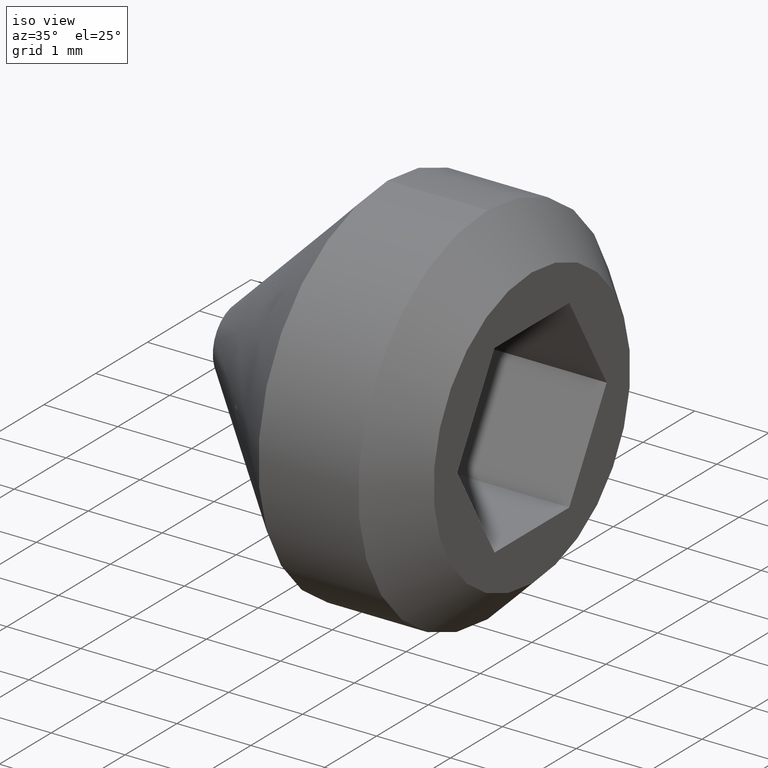
[diagram: clean part render]
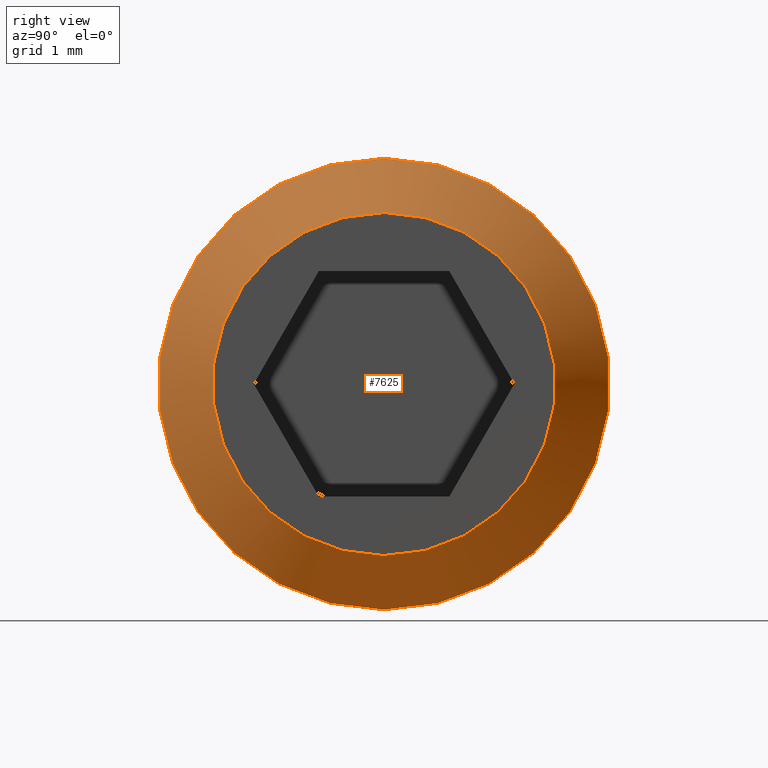
[diagram: tour spotlight — one face highlighted and labeled with its STEP entity id]
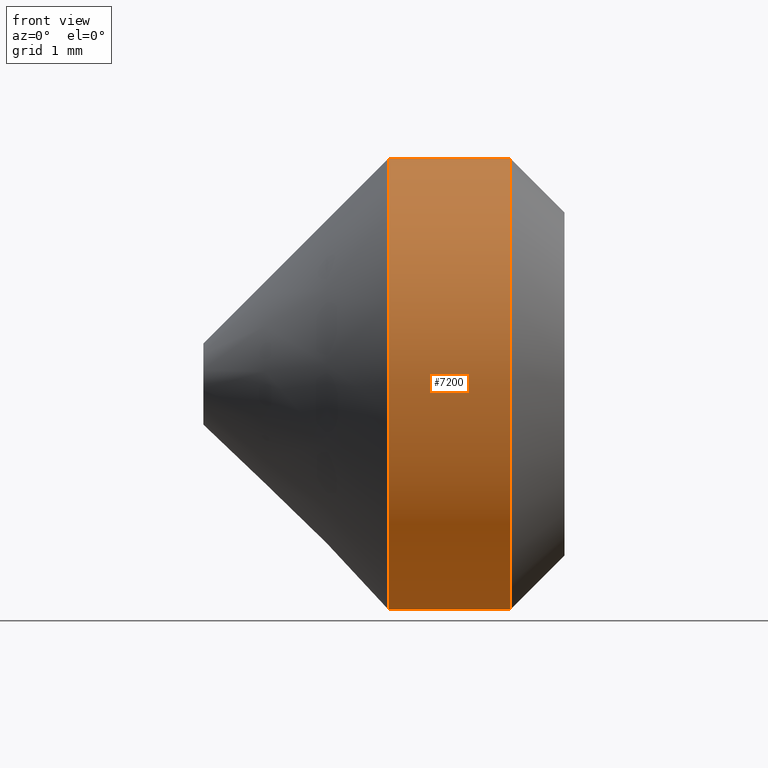
[diagram: tour spotlight — one face highlighted and labeled with its STEP entity id]
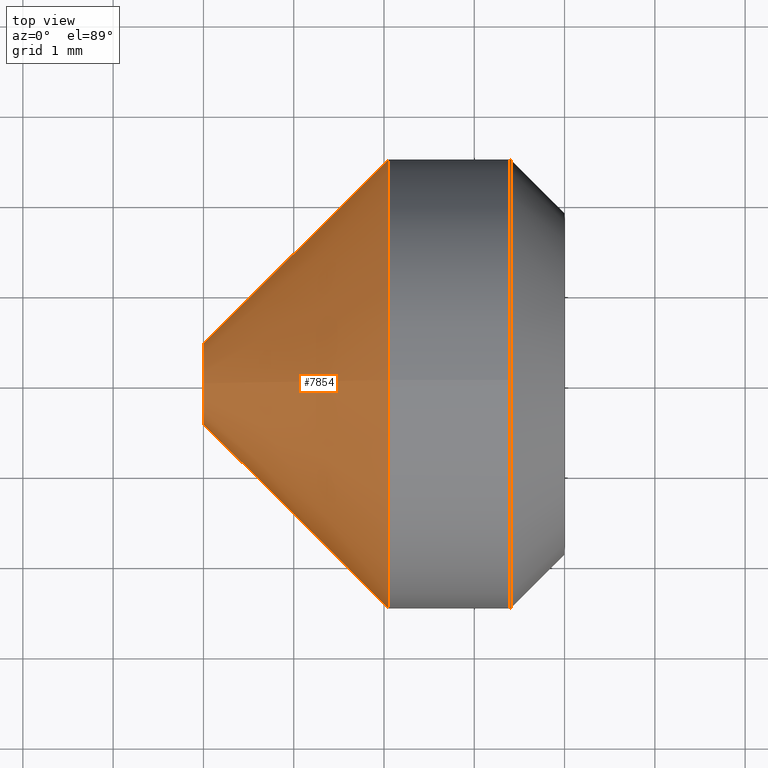
[diagram: tour spotlight — one face highlighted and labeled with its STEP entity id]
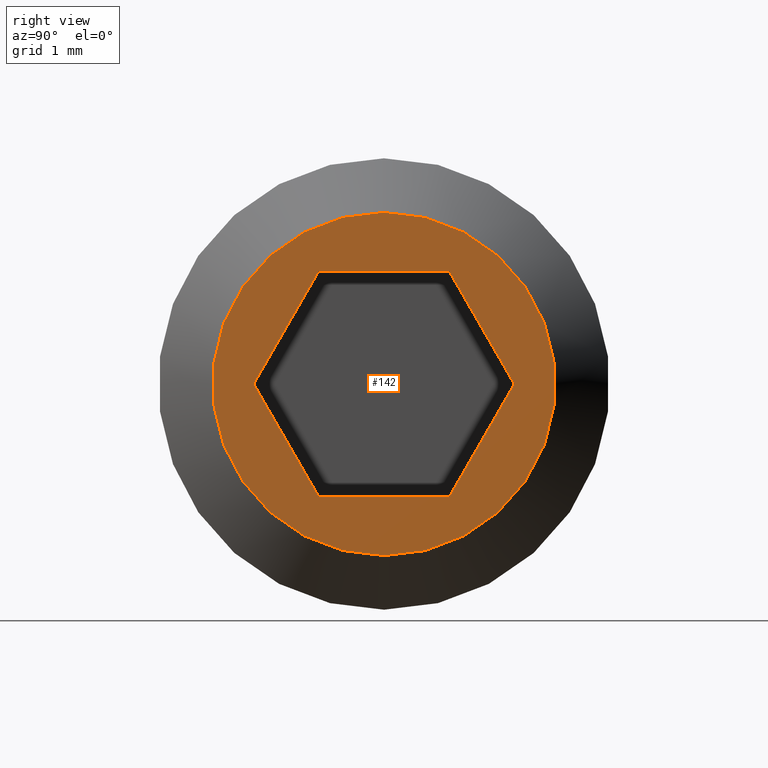
[diagram: tour spotlight — one face highlighted and labeled with its STEP entity id]
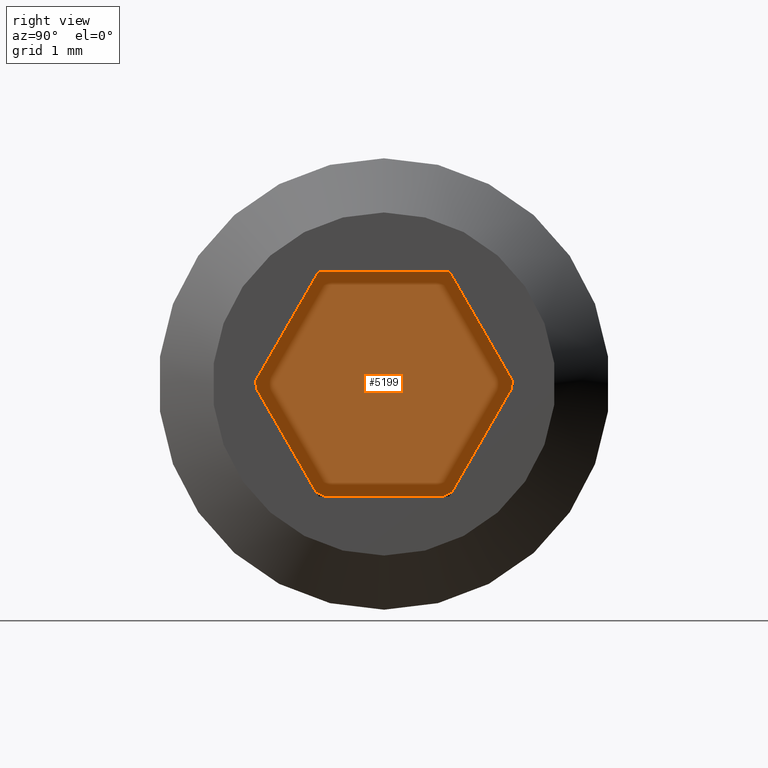
[diagram: tour spotlight — one face highlighted and labeled with its STEP entity id]
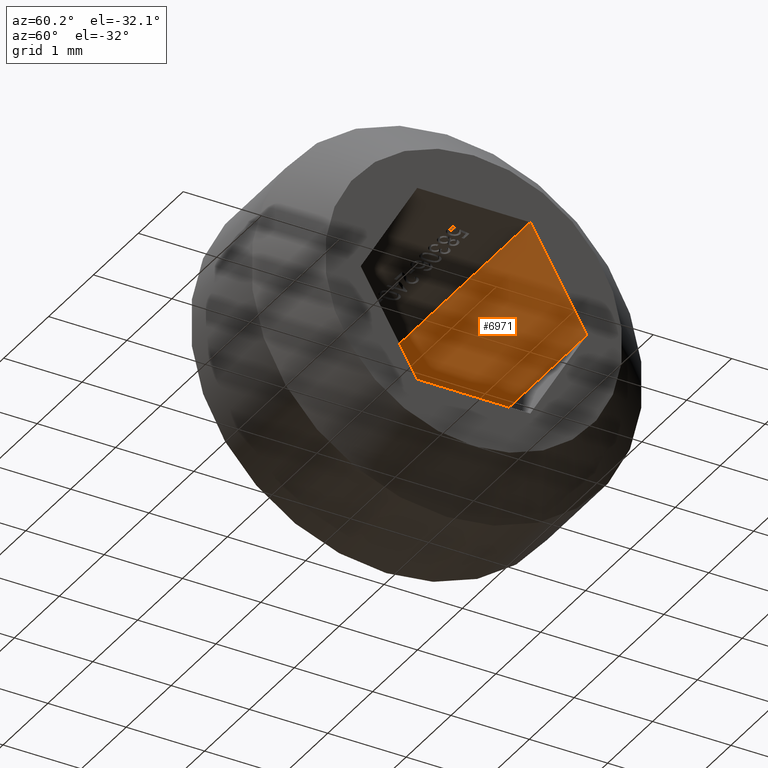
[diagram: tour spotlight — one face highlighted and labeled with its STEP entity id]
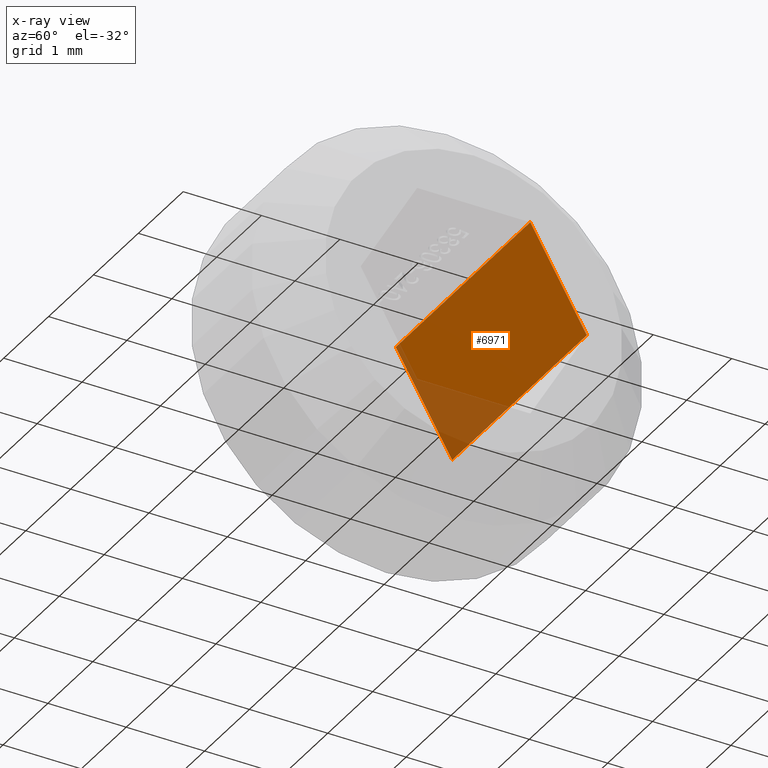
[diagram: x-ray of the same camera — body ghosted, this tour face saturated]
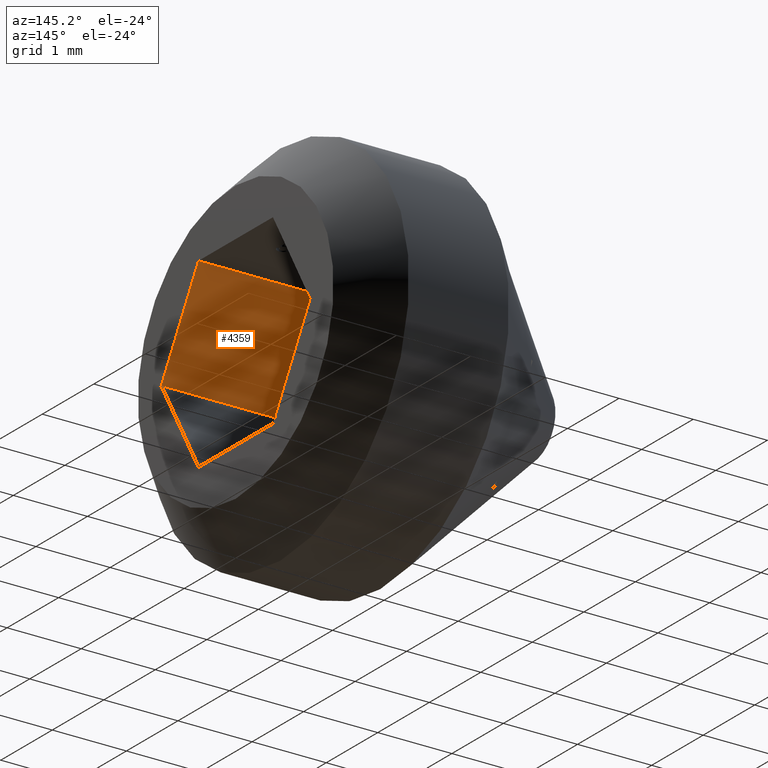
[diagram: tour spotlight — one face highlighted and labeled with its STEP entity id]
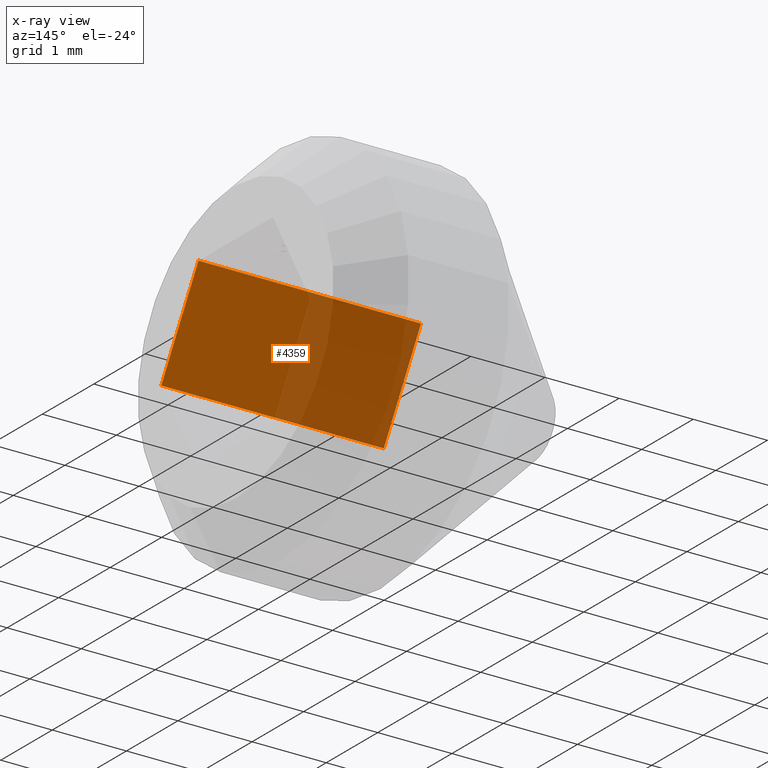
[diagram: x-ray of the same camera — body ghosted, this tour face saturated]
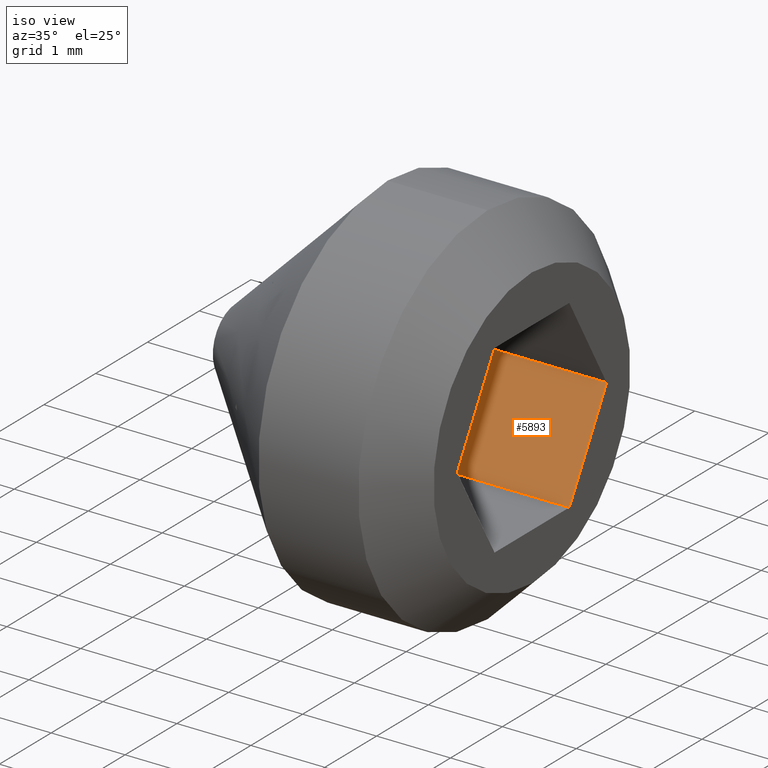
[diagram: tour spotlight — one face highlighted and labeled with its STEP entity id]
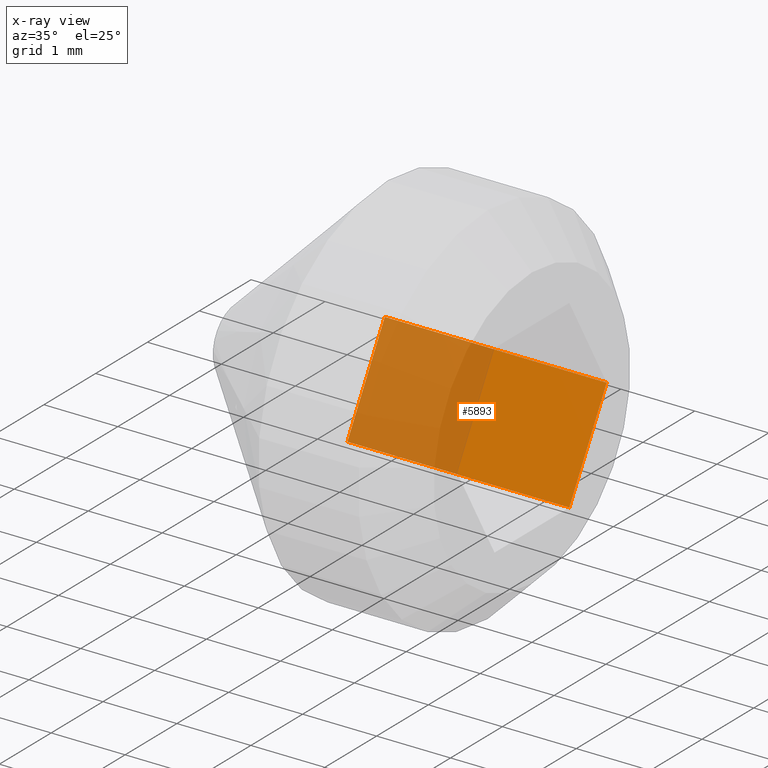
[diagram: x-ray of the same camera — body ghosted, this tour face saturated]
A machine part: a face-by-face anatomy tour. The part has 164 B-rep faces; the first image is the clean iso view, then the 8 largest visible faces are spotlighted one at a time (largest first), each with its STEP entity span.

Face 1 — right view, entity #7625. In plain terms, the highlighted conical surface has half-angle 45 deg.
Definition (entity closure, byte-faithful):
#206 = AXIS2_PLACEMENT_3D ( 'NONE', #4675, #10399, #10545 ) ;
#620 = CARTESIAN_POINT ( 'NONE',  ( 4.000000000000000000, 0.0000000000000000000, 0.0000000000000000000 ) ) ;
#702 = AXIS2_PLACEMENT_3D ( 'NONE', #620, #6449, #10551 ) ;
#823 = VERTEX_POINT ( 'NONE', #7634 ) ;
#1217 = VERTEX_POINT ( 'NONE', #3456 ) ;
#1231 = DIRECTION ( 'NONE',  ( -1.000000000000000000, 0.0000000000000000000, 0.0000000000000000000 ) ) ;
#1896 = CIRCLE ( 'NONE', #9694, 2.500000000000000000 ) ;
#2937 = CARTESIAN_POINT ( 'NONE',  ( 3.399999999999998100, 0.0000000000000000000, 0.0000000000000000000 ) ) ;
#3456 = CARTESIAN_POINT ( 'NONE',  ( 3.399999999999998100, 0.0000000000000000000, -2.500000000000000000 ) ) ;
#3458 = FACE_OUTER_BOUND ( 'NONE', #3684, .T. ) ;
#3684 = EDGE_LOOP ( 'NONE', ( #8734 ) ) ;
#3900 = EDGE_LOOP ( 'NONE', ( #5234 ) ) ;
#4675 = CARTESIAN_POINT ( 'NONE',  ( 4.000000000000000000, 0.0000000000000000000, 0.0000000000000000000 ) ) ;
#5234 = ORIENTED_EDGE ( 'NONE', *, *, #9887, .F. ) ;
#5836 = EDGE_CURVE ( 'NONE', #1217, #1217, #1896, .T. ) ;
#6449 = DIRECTION ( 'NONE',  ( -1.000000000000000000, 0.0000000000000000000, 0.0000000000000000000 ) ) ;
#6975 = CONICAL_SURFACE ( 'NONE', #702, 1.900000000000000100, 0.7853981633974465000 ) ;
#7625 = ADVANCED_FACE ( 'NONE', ( #3458, #9456 ), #6975, .T. ) ;
#7634 = CARTESIAN_POINT ( 'NONE',  ( 4.000000000000000000, 0.0000000000000000000, -1.900000000000000100 ) ) ;
#7845 = DIRECTION ( 'NONE',  ( 0.0000000000000000000, 0.0000000000000000000, -1.000000000000000000 ) ) ;
#8734 = ORIENTED_EDGE ( 'NONE', *, *, #5836, .F. ) ;
#9291 = CIRCLE ( 'NONE', #206, 1.900000000000000100 ) ;
#9456 = FACE_BOUND ( 'NONE', #3900, .T. ) ;
#9694 = AXIS2_PLACEMENT_3D ( 'NONE', #2937, #1231, #7845 ) ;
#9887 = EDGE_CURVE ( 'NONE', #823, #823, #9291, .T. ) ;
#10399 = DIRECTION ( 'NONE',  ( 1.000000000000000000, 0.0000000000000000000, 0.0000000000000000000 ) ) ;
#10545 = DIRECTION ( 'NONE',  ( 0.0000000000000000000, 0.0000000000000000000, -1.000000000000000000 ) ) ;
#10551 = DIRECTION ( 'NONE',  ( 0.0000000000000000000, 0.0000000000000000000, 1.000000000000000000 ) ) ;

Face 2 — front view, entity #7200. In plain terms, the highlighted cylindrical surface (bore or boss wall) has radius 2.5 mm, axis along (-1, -0, -0).
Definition (entity closure, byte-faithful):
#323 = CYLINDRICAL_SURFACE ( 'NONE', #2320, 2.500000000000000000 ) ;
#458 = FACE_OUTER_BOUND ( 'NONE', #8308, .T. ) ;
#549 = CARTESIAN_POINT ( 'NONE',  ( 2.049999999999976300, 0.0000000000000000000, 0.0000000000000000000 ) ) ;
#1217 = VERTEX_POINT ( 'NONE', #3456 ) ;
#1231 = DIRECTION ( 'NONE',  ( -1.000000000000000000, 0.0000000000000000000, 0.0000000000000000000 ) ) ;
#1896 = CIRCLE ( 'NONE', #9694, 2.500000000000000000 ) ;
#1936 = ORIENTED_EDGE ( 'NONE', *, *, #5836, .T. ) ;
#2320 = AXIS2_PLACEMENT_3D ( 'NONE', #2812, #8637, #4689 ) ;
#2642 = VERTEX_POINT ( 'NONE', #10100 ) ;
#2812 = CARTESIAN_POINT ( 'NONE',  ( 4.000000000000000000, 0.0000000000000000000, 0.0000000000000000000 ) ) ;
#2937 = CARTESIAN_POINT ( 'NONE',  ( 3.399999999999998100, 0.0000000000000000000, 0.0000000000000000000 ) ) ;
#3456 = CARTESIAN_POINT ( 'NONE',  ( 3.399999999999998100, 0.0000000000000000000, -2.500000000000000000 ) ) ;
#4689 = DIRECTION ( 'NONE',  ( 0.0000000000000000000, 0.0000000000000000000, 1.000000000000000000 ) ) ;
#5354 = EDGE_LOOP ( 'NONE', ( #1936 ) ) ;
#5421 = FACE_OUTER_BOUND ( 'NONE', #5354, .T. ) ;
#5836 = EDGE_CURVE ( 'NONE', #1217, #1217, #1896, .T. ) ;
#6389 = DIRECTION ( 'NONE',  ( 0.0000000000000000000, 0.0000000000000000000, 1.000000000000000000 ) ) ;
#6763 = AXIS2_PLACEMENT_3D ( 'NONE', #549, #10591, #6389 ) ;
#7200 = ADVANCED_FACE ( 'NONE', ( #5421, #458 ), #323, .T. ) ;
#7845 = DIRECTION ( 'NONE',  ( 0.0000000000000000000, 0.0000000000000000000, -1.000000000000000000 ) ) ;
#8308 = EDGE_LOOP ( 'NONE', ( #8980 ) ) ;
#8637 = DIRECTION ( 'NONE',  ( -1.000000000000000000, -0.0000000000000000000, -0.0000000000000000000 ) ) ;
#8980 = ORIENTED_EDGE ( 'NONE', *, *, #9596, .F. ) ;
#9596 = EDGE_CURVE ( 'NONE', #2642, #2642, #10195, .T. ) ;
#9694 = AXIS2_PLACEMENT_3D ( 'NONE', #2937, #1231, #7845 ) ;
#10100 = CARTESIAN_POINT ( 'NONE',  ( 2.049999999999976300, 0.0000000000000000000, 2.499999999999999600 ) ) ;
#10195 = CIRCLE ( 'NONE', #6763, 2.499999999999999600 ) ;
#10591 = DIRECTION ( 'NONE',  ( -1.000000000000000000, -0.0000000000000000000, -0.0000000000000000000 ) ) ;

Face 3 — top view, entity #7854. In plain terms, the highlighted conical surface has half-angle 45 deg.
Definition (entity closure, byte-faithful):
#6 = CARTESIAN_POINT ( 'NONE',  ( 4.347496136973103900E-016, 0.0000000000000000000, 0.0000000000000000000 ) ) ;
#121 = CARTESIAN_POINT ( 'NONE',  ( 4.347496136973103900E-016, 0.0000000000000000000, 0.4500000000000000100 ) ) ;
#195 = CARTESIAN_POINT ( 'NONE',  ( 4.347496136973103900E-016, 0.0000000000000000000, 0.0000000000000000000 ) ) ;
#327 = EDGE_LOOP ( 'NONE', ( #8464 ) ) ;
#549 = CARTESIAN_POINT ( 'NONE',  ( 2.049999999999976300, 0.0000000000000000000, 0.0000000000000000000 ) ) ;
#563 = VERTEX_POINT ( 'NONE', #121 ) ;
#1702 = ORIENTED_EDGE ( 'NONE', *, *, #9596, .T. ) ;
#2153 = CIRCLE ( 'NONE', #2938, 0.4500000000000000100 ) ;
#2642 = VERTEX_POINT ( 'NONE', #10100 ) ;
#2938 = AXIS2_PLACEMENT_3D ( 'NONE', #195, #4368, #5188 ) ;
#3706 = FACE_BOUND ( 'NONE', #327, .T. ) ;
#4368 = DIRECTION ( 'NONE',  ( -1.000000000000000000, -0.0000000000000000000, -0.0000000000000000000 ) ) ;
#4374 = FACE_OUTER_BOUND ( 'NONE', #6883, .T. ) ;
#5109 = DIRECTION ( 'NONE',  ( 1.000000000000000000, 0.0000000000000000000, 0.0000000000000000000 ) ) ;
#5188 = DIRECTION ( 'NONE',  ( 0.0000000000000000000, 0.0000000000000000000, 1.000000000000000000 ) ) ;
#6389 = DIRECTION ( 'NONE',  ( 0.0000000000000000000, 0.0000000000000000000, 1.000000000000000000 ) ) ;
#6678 = DIRECTION ( 'NONE',  ( 0.0000000000000000000, 0.0000000000000000000, -1.000000000000000000 ) ) ;
#6763 = AXIS2_PLACEMENT_3D ( 'NONE', #549, #10591, #6389 ) ;
#6883 = EDGE_LOOP ( 'NONE', ( #1702 ) ) ;
#7854 = ADVANCED_FACE ( 'NONE', ( #4374, #3706 ), #10610, .T. ) ;
#7963 = EDGE_CURVE ( 'NONE', #563, #563, #2153, .T. ) ;
#8464 = ORIENTED_EDGE ( 'NONE', *, *, #7963, .F. ) ;
#9596 = EDGE_CURVE ( 'NONE', #2642, #2642, #10195, .T. ) ;
#10100 = CARTESIAN_POINT ( 'NONE',  ( 2.049999999999976300, 0.0000000000000000000, 2.499999999999999600 ) ) ;
#10195 = CIRCLE ( 'NONE', #6763, 2.499999999999999600 ) ;
#10591 = DIRECTION ( 'NONE',  ( -1.000000000000000000, -0.0000000000000000000, -0.0000000000000000000 ) ) ;
#10610 = CONICAL_SURFACE ( 'NONE', #10739, 0.4500000000000000100, 0.7853981633974541600 ) ;
#10739 = AXIS2_PLACEMENT_3D ( 'NONE', #6, #5109, #6678 ) ;

Face 4 — right view, entity #142. In plain terms, the highlighted planar face has unit normal (1, 0, 0).
Definition (entity closure, byte-faithful):
#142 = ADVANCED_FACE ( 'NONE', ( #3614, #8690 ), #3053, .T. ) ;
#206 = AXIS2_PLACEMENT_3D ( 'NONE', #4675, #10399, #10545 ) ;
#736 = LINE ( 'NONE', #1502, #9978 ) ;
#754 = VECTOR ( 'NONE', #9405, 1000.000000000000000 ) ;
#788 = ORIENTED_EDGE ( 'NONE', *, *, #1565, .F. ) ;
#801 = CARTESIAN_POINT ( 'NONE',  ( 4.000000000000000000, -0.7216878364870328300, -1.249999999999999800 ) ) ;
#802 = AXIS2_PLACEMENT_3D ( 'NONE', #9744, #5622, #8873 ) ;
#823 = VERTEX_POINT ( 'NONE', #7634 ) ;
#971 = VECTOR ( 'NONE', #3240, 1000.000000000000000 ) ;
#1180 = VERTEX_POINT ( 'NONE', #801 ) ;
#1502 = CARTESIAN_POINT ( 'NONE',  ( 4.000000000000000000, 1.443375672974064500, -2.347414423708810500E-016 ) ) ;
#1565 = EDGE_CURVE ( 'NONE', #10780, #6747, #4024, .T. ) ;
#1692 = CARTESIAN_POINT ( 'NONE',  ( 4.000000000000000000, 1.443375672974064500, -2.347414423708810500E-016 ) ) ;
#2081 = EDGE_CURVE ( 'NONE', #6747, #10409, #5977, .T. ) ;
#2296 = LINE ( 'NONE', #7769, #8393 ) ;
#2335 = DIRECTION ( 'NONE',  ( 0.0000000000000000000, 1.000000000000000000, 0.0000000000000000000 ) ) ;
#2774 = CARTESIAN_POINT ( 'NONE',  ( 4.000000000000000000, -0.7216878364870322700, 1.249999999999999800 ) ) ;
#2953 = ORIENTED_EDGE ( 'NONE', *, *, #5287, .F. ) ;
#2996 = ORIENTED_EDGE ( 'NONE', *, *, #7149, .F. ) ;
#3053 = PLANE ( 'NONE',  #802 ) ;
#3240 = DIRECTION ( 'NONE',  ( 0.0000000000000000000, 0.4999999999999995600, -0.8660254037844389300 ) ) ;
#3614 = FACE_BOUND ( 'NONE', #9029, .T. ) ;
#3948 = EDGE_CURVE ( 'NONE', #6047, #10780, #736, .T. ) ;
#4024 = LINE ( 'NONE', #4975, #6366 ) ;
#4381 = CARTESIAN_POINT ( 'NONE',  ( 4.000000000000000000, -1.443375672974064300, 4.336808689942017700E-016 ) ) ;
#4399 = EDGE_LOOP ( 'NONE', ( #7426 ) ) ;
#4675 = CARTESIAN_POINT ( 'NONE',  ( 4.000000000000000000, 0.0000000000000000000, 0.0000000000000000000 ) ) ;
#4928 = DIRECTION ( 'NONE',  ( 0.0000000000000000000, -0.4999999999999997800, 0.8660254037844387100 ) ) ;
#4975 = CARTESIAN_POINT ( 'NONE',  ( 4.000000000000000000, 0.7216878364870323900, 1.250000000000000200 ) ) ;
#5187 = EDGE_CURVE ( 'NONE', #1180, #9100, #7492, .T. ) ;
#5287 = EDGE_CURVE ( 'NONE', #10409, #1180, #5310, .T. ) ;
#5310 = LINE ( 'NONE', #8884, #971 ) ;
#5622 = DIRECTION ( 'NONE',  ( 1.000000000000000000, 0.0000000000000000000, 0.0000000000000000000 ) ) ;
#5936 = CARTESIAN_POINT ( 'NONE',  ( 4.000000000000000000, 0.7216878364870323900, 1.250000000000000200 ) ) ;
#5977 = LINE ( 'NONE', #2774, #754 ) ;
#6047 = VERTEX_POINT ( 'NONE', #1692 ) ;
#6313 = ORIENTED_EDGE ( 'NONE', *, *, #5187, .F. ) ;
#6366 = VECTOR ( 'NONE', #9139, 1000.000000000000000 ) ;
#6695 = ORIENTED_EDGE ( 'NONE', *, *, #2081, .F. ) ;
#6747 = VERTEX_POINT ( 'NONE', #10288 ) ;
#7149 = EDGE_CURVE ( 'NONE', #9100, #6047, #2296, .T. ) ;
#7426 = ORIENTED_EDGE ( 'NONE', *, *, #9887, .T. ) ;
#7492 = LINE ( 'NONE', #9756, #8937 ) ;
#7634 = CARTESIAN_POINT ( 'NONE',  ( 4.000000000000000000, 0.0000000000000000000, -1.900000000000000100 ) ) ;
#7769 = CARTESIAN_POINT ( 'NONE',  ( 4.000000000000000000, 0.7216878364870323900, -1.249999999999999800 ) ) ;
#8393 = VECTOR ( 'NONE', #9442, 1000.000000000000000 ) ;
#8690 = FACE_OUTER_BOUND ( 'NONE', #4399, .T. ) ;
#8873 = DIRECTION ( 'NONE',  ( 0.0000000000000000000, 0.0000000000000000000, -1.000000000000000000 ) ) ;
#8884 = CARTESIAN_POINT ( 'NONE',  ( 4.000000000000000000, -1.443375672974064300, 4.372299312448236600E-016 ) ) ;
#8937 = VECTOR ( 'NONE', #2335, 1000.000000000000000 ) ;
#9029 = EDGE_LOOP ( 'NONE', ( #6695, #788, #10526, #2996, #6313, #2953 ) ) ;
#9100 = VERTEX_POINT ( 'NONE', #10306 ) ;
#9139 = DIRECTION ( 'NONE',  ( 0.0000000000000000000, -1.000000000000000000, -3.004629197474318100E-016 ) ) ;
#9291 = CIRCLE ( 'NONE', #206, 1.900000000000000100 ) ;
#9405 = DIRECTION ( 'NONE',  ( 0.0000000000000000000, -0.5000000000000001100, -0.8660254037844386000 ) ) ;
#9442 = DIRECTION ( 'NONE',  ( 0.0000000000000000000, 0.5000000000000001100, 0.8660254037844386000 ) ) ;
#9744 = CARTESIAN_POINT ( 'NONE',  ( 4.000000000000000000, 0.0000000000000000000, 0.0000000000000000000 ) ) ;
#9756 = CARTESIAN_POINT ( 'NONE',  ( 4.000000000000000000, -0.7216878364870328300, -1.249999999999999800 ) ) ;
#9887 = EDGE_CURVE ( 'NONE', #823, #823, #9291, .T. ) ;
#9978 = VECTOR ( 'NONE', #4928, 1000.000000000000100 ) ;
#10288 = CARTESIAN_POINT ( 'NONE',  ( 4.000000000000000000, -0.7216878364870322700, 1.249999999999999800 ) ) ;
#10306 = CARTESIAN_POINT ( 'NONE',  ( 4.000000000000000000, 0.7216878364870323900, -1.249999999999999800 ) ) ;
#10399 = DIRECTION ( 'NONE',  ( 1.000000000000000000, 0.0000000000000000000, 0.0000000000000000000 ) ) ;
#10409 = VERTEX_POINT ( 'NONE', #4381 ) ;
#10526 = ORIENTED_EDGE ( 'NONE', *, *, #3948, .F. ) ;
#10545 = DIRECTION ( 'NONE',  ( 0.0000000000000000000, 0.0000000000000000000, -1.000000000000000000 ) ) ;
#10780 = VERTEX_POINT ( 'NONE', #5936 ) ;

Face 5 — right view, entity #5199. In plain terms, the highlighted planar face has unit normal (1, -0, 0).
Definition (entity closure, byte-faithful):
#49 = VECTOR ( 'NONE', #969, 1000.000000000000100 ) ;
#598 = LINE ( 'NONE', #10664, #49 ) ;
#969 = DIRECTION ( 'NONE',  ( 0.0000000000000000000, -0.4999999999999997800, 0.8660254037844387100 ) ) ;
#1424 = CARTESIAN_POINT ( 'NONE',  ( 1.000000000000000000, -2.165063509461096800, -1.250000000000000000 ) ) ;
#1535 = VERTEX_POINT ( 'NONE', #9177 ) ;
#1639 = CARTESIAN_POINT ( 'NONE',  ( 1.000000000000000000, -0.7216878364870328300, -1.250000000000000000 ) ) ;
#2025 = VECTOR ( 'NONE', #6857, 1000.000000000000000 ) ;
#2265 = EDGE_CURVE ( 'NONE', #4154, #10096, #7131, .T. ) ;
#2274 = CARTESIAN_POINT ( 'NONE',  ( 1.000000000000000000, -0.7216878364870322700, 1.249999999999999600 ) ) ;
#2522 = VECTOR ( 'NONE', #3908, 1000.000000000000000 ) ;
#2663 = VERTEX_POINT ( 'NONE', #4701 ) ;
#2749 = VERTEX_POINT ( 'NONE', #5783 ) ;
#3320 = LINE ( 'NONE', #4070, #2025 ) ;
#3364 = ORIENTED_EDGE ( 'NONE', *, *, #2265, .T. ) ;
#3407 = ORIENTED_EDGE ( 'NONE', *, *, #10695, .T. ) ;
#3908 = DIRECTION ( 'NONE',  ( 0.0000000000000000000, -0.5000000000000001100, -0.8660254037844386000 ) ) ;
#4070 = CARTESIAN_POINT ( 'NONE',  ( 1.000000000000000000, -1.443375672974064300, 2.535389781714670200E-016 ) ) ;
#4154 = VERTEX_POINT ( 'NONE', #9530 ) ;
#4701 = CARTESIAN_POINT ( 'NONE',  ( 1.000000000000000000, -1.443375672974064300, 2.535389781714670200E-016 ) ) ;
#4799 = ORIENTED_EDGE ( 'NONE', *, *, #7695, .T. ) ;
#4856 = PLANE ( 'NONE',  #9133 ) ;
#5006 = VECTOR ( 'NONE', #8288, 1000.000000000000000 ) ;
#5041 = EDGE_LOOP ( 'NONE', ( #9111, #6617, #3407, #3364, #4799, #9432 ) ) ;
#5199 = ADVANCED_FACE ( 'NONE', ( #9055 ), #4856, .T. ) ;
#5783 = CARTESIAN_POINT ( 'NONE',  ( 1.000000000000000000, -0.7216878364870322700, 1.249999999999999600 ) ) ;
#5903 = CARTESIAN_POINT ( 'NONE',  ( 1.000000000000000000, 0.7216878364870323900, 1.250000000000000000 ) ) ;
#6104 = CARTESIAN_POINT ( 'NONE',  ( 1.000000000000000000, 0.7216878364870323900, -1.250000000000000000 ) ) ;
#6229 = VECTOR ( 'NONE', #9295, 1000.000000000000000 ) ;
#6574 = EDGE_CURVE ( 'NONE', #8232, #2749, #9823, .T. ) ;
#6617 = ORIENTED_EDGE ( 'NONE', *, *, #8463, .T. ) ;
#6857 = DIRECTION ( 'NONE',  ( 0.0000000000000000000, 0.4999999999999995600, -0.8660254037844389300 ) ) ;
#7131 = LINE ( 'NONE', #6104, #6229 ) ;
#7203 = DIRECTION ( 'NONE',  ( 0.0000000000000000000, 0.0000000000000000000, -1.000000000000000000 ) ) ;
#7207 = LINE ( 'NONE', #1639, #5006 ) ;
#7695 = EDGE_CURVE ( 'NONE', #10096, #8232, #598, .T. ) ;
#7869 = VECTOR ( 'NONE', #9240, 1000.000000000000000 ) ;
#8126 = CARTESIAN_POINT ( 'NONE',  ( 1.000000000000000000, 1.443375672974064500, -4.184323954442376900E-016 ) ) ;
#8232 = VERTEX_POINT ( 'NONE', #10498 ) ;
#8288 = DIRECTION ( 'NONE',  ( 0.0000000000000000000, 1.000000000000000000, 0.0000000000000000000 ) ) ;
#8463 = EDGE_CURVE ( 'NONE', #2663, #1535, #3320, .T. ) ;
#8728 = EDGE_CURVE ( 'NONE', #2749, #2663, #9434, .T. ) ;
#9055 = FACE_OUTER_BOUND ( 'NONE', #5041, .T. ) ;
#9111 = ORIENTED_EDGE ( 'NONE', *, *, #8728, .T. ) ;
#9133 = AXIS2_PLACEMENT_3D ( 'NONE', #1424, #10663, #7203 ) ;
#9177 = CARTESIAN_POINT ( 'NONE',  ( 1.000000000000000000, -0.7216878364870328300, -1.250000000000000000 ) ) ;
#9240 = DIRECTION ( 'NONE',  ( 0.0000000000000000000, -1.000000000000000000, -3.004629197474318100E-016 ) ) ;
#9295 = DIRECTION ( 'NONE',  ( 0.0000000000000000000, 0.5000000000000001100, 0.8660254037844386000 ) ) ;
#9432 = ORIENTED_EDGE ( 'NONE', *, *, #6574, .T. ) ;
#9434 = LINE ( 'NONE', #2274, #2522 ) ;
#9530 = CARTESIAN_POINT ( 'NONE',  ( 1.000000000000000000, 0.7216878364870323900, -1.250000000000000000 ) ) ;
#9823 = LINE ( 'NONE', #5903, #7869 ) ;
#10096 = VERTEX_POINT ( 'NONE', #8126 ) ;
#10498 = CARTESIAN_POINT ( 'NONE',  ( 1.000000000000000000, 0.7216878364870323900, 1.250000000000000000 ) ) ;
#10663 = DIRECTION ( 'NONE',  ( 1.000000000000000000, -0.0000000000000000000, 0.0000000000000000000 ) ) ;
#10664 = CARTESIAN_POINT ( 'NONE',  ( 1.000000000000000000, 1.443375672974064500, -4.184323954442376900E-016 ) ) ;
#10695 = EDGE_CURVE ( 'NONE', #1535, #4154, #7207, .T. ) ;

Face 6 — auxiliary view, entity #6971. An x-ray twin of the same camera follows (body ghosted, this face saturated) — the face is partly hidden behind the body. In plain terms, the highlighted planar face has unit normal (-0, 0.866, 0.5).
Definition (entity closure, byte-faithful):
#49 = VECTOR ( 'NONE', #969, 1000.000000000000100 ) ;
#598 = LINE ( 'NONE', #10664, #49 ) ;
#736 = LINE ( 'NONE', #1502, #9978 ) ;
#969 = DIRECTION ( 'NONE',  ( 0.0000000000000000000, -0.4999999999999997800, 0.8660254037844387100 ) ) ;
#1144 = ORIENTED_EDGE ( 'NONE', *, *, #7695, .F. ) ;
#1502 = CARTESIAN_POINT ( 'NONE',  ( 4.000000000000000000, 1.443375672974064500, -2.347414423708810500E-016 ) ) ;
#1692 = CARTESIAN_POINT ( 'NONE',  ( 4.000000000000000000, 1.443375672974064500, -2.347414423708810500E-016 ) ) ;
#2171 = AXIS2_PLACEMENT_3D ( 'NONE', #3134, #2325, #2389 ) ;
#2325 = DIRECTION ( 'NONE',  ( -3.061515884555941300E-017, 0.8660254037844387100, 0.4999999999999998300 ) ) ;
#2389 = DIRECTION ( 'NONE',  ( 0.0000000000000000000, -0.4999999999999998300, 0.8660254037844387100 ) ) ;
#2896 = ORIENTED_EDGE ( 'NONE', *, *, #7486, .F. ) ;
#3100 = CARTESIAN_POINT ( 'NONE',  ( 1.000000000000000000, 1.443375672974064500, -4.184323954442376900E-016 ) ) ;
#3134 = CARTESIAN_POINT ( 'NONE',  ( 1.000000000000000000, 1.443375672974064500, -4.184323954442376900E-016 ) ) ;
#3187 = CARTESIAN_POINT ( 'NONE',  ( 1.000000000000000000, 0.7216878364870323900, 1.250000000000000000 ) ) ;
#3207 = LINE ( 'NONE', #3187, #7363 ) ;
#3221 = LINE ( 'NONE', #3100, #5834 ) ;
#3595 = EDGE_CURVE ( 'NONE', #10096, #6047, #3221, .T. ) ;
#3718 = FACE_OUTER_BOUND ( 'NONE', #5178, .T. ) ;
#3948 = EDGE_CURVE ( 'NONE', #6047, #10780, #736, .T. ) ;
#4928 = DIRECTION ( 'NONE',  ( 0.0000000000000000000, -0.4999999999999997800, 0.8660254037844387100 ) ) ;
#5178 = EDGE_LOOP ( 'NONE', ( #7825, #2896, #1144, #7642 ) ) ;
#5759 = PLANE ( 'NONE',  #2171 ) ;
#5834 = VECTOR ( 'NONE', #7345, 1000.000000000000000 ) ;
#5936 = CARTESIAN_POINT ( 'NONE',  ( 4.000000000000000000, 0.7216878364870323900, 1.250000000000000200 ) ) ;
#6047 = VERTEX_POINT ( 'NONE', #1692 ) ;
#6971 = ADVANCED_FACE ( 'NONE', ( #3718 ), #5759, .F. ) ;
#7345 = DIRECTION ( 'NONE',  ( 1.000000000000000000, -0.0000000000000000000, 6.123031769111886300E-017 ) ) ;
#7363 = VECTOR ( 'NONE', #8517, 1000.000000000000000 ) ;
#7486 = EDGE_CURVE ( 'NONE', #8232, #10780, #3207, .T. ) ;
#7642 = ORIENTED_EDGE ( 'NONE', *, *, #3595, .T. ) ;
#7695 = EDGE_CURVE ( 'NONE', #10096, #8232, #598, .T. ) ;
#7825 = ORIENTED_EDGE ( 'NONE', *, *, #3948, .T. ) ;
#8126 = CARTESIAN_POINT ( 'NONE',  ( 1.000000000000000000, 1.443375672974064500, -4.184323954442376900E-016 ) ) ;
#8232 = VERTEX_POINT ( 'NONE', #10498 ) ;
#8517 = DIRECTION ( 'NONE',  ( 1.000000000000000000, -0.0000000000000000000, 6.123031769111886300E-017 ) ) ;
#9978 = VECTOR ( 'NONE', #4928, 1000.000000000000100 ) ;
#10096 = VERTEX_POINT ( 'NONE', #8126 ) ;
#10498 = CARTESIAN_POINT ( 'NONE',  ( 1.000000000000000000, 0.7216878364870323900, 1.250000000000000000 ) ) ;
#10664 = CARTESIAN_POINT ( 'NONE',  ( 1.000000000000000000, 1.443375672974064500, -4.184323954442376900E-016 ) ) ;
#10780 = VERTEX_POINT ( 'NONE', #5936 ) ;

Face 7 — auxiliary view, entity #4359. An x-ray twin of the same camera follows (body ghosted, this face saturated) — the face is partly hidden behind the body. In plain terms, the highlighted planar face has unit normal (-0, -0.866, 0.5).
Definition (entity closure, byte-faithful):
#712 = VECTOR ( 'NONE', #8089, 1000.000000000000000 ) ;
#754 = VECTOR ( 'NONE', #9405, 1000.000000000000000 ) ;
#894 = ORIENTED_EDGE ( 'NONE', *, *, #8765, .T. ) ;
#1363 = LINE ( 'NONE', #2236, #712 ) ;
#1475 = AXIS2_PLACEMENT_3D ( 'NONE', #7481, #10791, #2424 ) ;
#1925 = ORIENTED_EDGE ( 'NONE', *, *, #2081, .T. ) ;
#2081 = EDGE_CURVE ( 'NONE', #6747, #10409, #5977, .T. ) ;
#2236 = CARTESIAN_POINT ( 'NONE',  ( 1.000000000000000000, -0.7216878364870322700, 1.249999999999999600 ) ) ;
#2274 = CARTESIAN_POINT ( 'NONE',  ( 1.000000000000000000, -0.7216878364870322700, 1.249999999999999600 ) ) ;
#2424 = DIRECTION ( 'NONE',  ( 0.0000000000000000000, -0.5000000000000001100, -0.8660254037844386000 ) ) ;
#2522 = VECTOR ( 'NONE', #3908, 1000.000000000000000 ) ;
#2663 = VERTEX_POINT ( 'NONE', #4701 ) ;
#2749 = VERTEX_POINT ( 'NONE', #5783 ) ;
#2774 = CARTESIAN_POINT ( 'NONE',  ( 4.000000000000000000, -0.7216878364870322700, 1.249999999999999800 ) ) ;
#3908 = DIRECTION ( 'NONE',  ( 0.0000000000000000000, -0.5000000000000001100, -0.8660254037844386000 ) ) ;
#4355 = EDGE_CURVE ( 'NONE', #2663, #10409, #4390, .T. ) ;
#4359 = ADVANCED_FACE ( 'NONE', ( #9968 ), #8240, .F. ) ;
#4381 = CARTESIAN_POINT ( 'NONE',  ( 4.000000000000000000, -1.443375672974064300, 4.336808689942017700E-016 ) ) ;
#4390 = LINE ( 'NONE', #6371, #6082 ) ;
#4701 = CARTESIAN_POINT ( 'NONE',  ( 1.000000000000000000, -1.443375672974064300, 2.535389781714670200E-016 ) ) ;
#4987 = DIRECTION ( 'NONE',  ( 1.000000000000000000, -0.0000000000000000000, 6.123031769111886300E-017 ) ) ;
#5097 = ORIENTED_EDGE ( 'NONE', *, *, #8728, .F. ) ;
#5783 = CARTESIAN_POINT ( 'NONE',  ( 1.000000000000000000, -0.7216878364870322700, 1.249999999999999600 ) ) ;
#5977 = LINE ( 'NONE', #2774, #754 ) ;
#6082 = VECTOR ( 'NONE', #4987, 1000.000000000000000 ) ;
#6371 = CARTESIAN_POINT ( 'NONE',  ( 1.000000000000000000, -1.443375672974064300, 2.535389781714670200E-016 ) ) ;
#6747 = VERTEX_POINT ( 'NONE', #10288 ) ;
#7481 = CARTESIAN_POINT ( 'NONE',  ( 1.000000000000000000, -0.7216878364870322700, 1.249999999999999600 ) ) ;
#8089 = DIRECTION ( 'NONE',  ( 1.000000000000000000, -0.0000000000000000000, 6.123031769111886300E-017 ) ) ;
#8240 = PLANE ( 'NONE',  #1475 ) ;
#8728 = EDGE_CURVE ( 'NONE', #2749, #2663, #9434, .T. ) ;
#8765 = EDGE_CURVE ( 'NONE', #2749, #6747, #1363, .T. ) ;
#8892 = ORIENTED_EDGE ( 'NONE', *, *, #4355, .F. ) ;
#9405 = DIRECTION ( 'NONE',  ( 0.0000000000000000000, -0.5000000000000001100, -0.8660254037844386000 ) ) ;
#9434 = LINE ( 'NONE', #2274, #2522 ) ;
#9968 = FACE_OUTER_BOUND ( 'NONE', #10436, .T. ) ;
#10288 = CARTESIAN_POINT ( 'NONE',  ( 4.000000000000000000, -0.7216878364870322700, 1.249999999999999800 ) ) ;
#10409 = VERTEX_POINT ( 'NONE', #4381 ) ;
#10436 = EDGE_LOOP ( 'NONE', ( #1925, #8892, #5097, #894 ) ) ;
#10791 = DIRECTION ( 'NONE',  ( -3.061515884555943800E-017, -0.8660254037844386000, 0.5000000000000001100 ) ) ;

Face 8 — iso view, entity #5893. An x-ray twin of the same camera follows (body ghosted, this face saturated) — the face is partly hidden behind the body. In plain terms, the highlighted planar face has unit normal (0, 0.866, -0.5).
Definition (entity closure, byte-faithful):
#722 = LINE ( 'NONE', #7268, #2412 ) ;
#1692 = CARTESIAN_POINT ( 'NONE',  ( 4.000000000000000000, 1.443375672974064500, -2.347414423708810500E-016 ) ) ;
#2265 = EDGE_CURVE ( 'NONE', #4154, #10096, #7131, .T. ) ;
#2296 = LINE ( 'NONE', #7769, #8393 ) ;
#2412 = VECTOR ( 'NONE', #8207, 1000.000000000000000 ) ;
#3100 = CARTESIAN_POINT ( 'NONE',  ( 1.000000000000000000, 1.443375672974064500, -4.184323954442376900E-016 ) ) ;
#3221 = LINE ( 'NONE', #3100, #5834 ) ;
#3318 = FACE_OUTER_BOUND ( 'NONE', #6892, .T. ) ;
#3595 = EDGE_CURVE ( 'NONE', #10096, #6047, #3221, .T. ) ;
#4154 = VERTEX_POINT ( 'NONE', #9530 ) ;
#4164 = ORIENTED_EDGE ( 'NONE', *, *, #2265, .F. ) ;
#5293 = DIRECTION ( 'NONE',  ( 0.0000000000000000000, 0.5000000000000001100, 0.8660254037844386000 ) ) ;
#5329 = CARTESIAN_POINT ( 'NONE',  ( 1.000000000000000000, 0.7216878364870323900, -1.250000000000000000 ) ) ;
#5812 = ORIENTED_EDGE ( 'NONE', *, *, #3595, .F. ) ;
#5834 = VECTOR ( 'NONE', #7345, 1000.000000000000000 ) ;
#5893 = ADVANCED_FACE ( 'NONE', ( #3318 ), #9524, .F. ) ;
#6047 = VERTEX_POINT ( 'NONE', #1692 ) ;
#6104 = CARTESIAN_POINT ( 'NONE',  ( 1.000000000000000000, 0.7216878364870323900, -1.250000000000000000 ) ) ;
#6229 = VECTOR ( 'NONE', #9295, 1000.000000000000000 ) ;
#6892 = EDGE_LOOP ( 'NONE', ( #8146, #5812, #4164, #10760 ) ) ;
#6925 = EDGE_CURVE ( 'NONE', #4154, #9100, #722, .T. ) ;
#7131 = LINE ( 'NONE', #6104, #6229 ) ;
#7149 = EDGE_CURVE ( 'NONE', #9100, #6047, #2296, .T. ) ;
#7268 = CARTESIAN_POINT ( 'NONE',  ( 1.000000000000000000, 0.7216878364870323900, -1.250000000000000000 ) ) ;
#7345 = DIRECTION ( 'NONE',  ( 1.000000000000000000, -0.0000000000000000000, 6.123031769111886300E-017 ) ) ;
#7769 = CARTESIAN_POINT ( 'NONE',  ( 4.000000000000000000, 0.7216878364870323900, -1.249999999999999800 ) ) ;
#7816 = DIRECTION ( 'NONE',  ( 3.061515884555943800E-017, 0.8660254037844386000, -0.5000000000000001100 ) ) ;
#8097 = AXIS2_PLACEMENT_3D ( 'NONE', #5329, #7816, #5293 ) ;
#8126 = CARTESIAN_POINT ( 'NONE',  ( 1.000000000000000000, 1.443375672974064500, -4.184323954442376900E-016 ) ) ;
#8146 = ORIENTED_EDGE ( 'NONE', *, *, #7149, .T. ) ;
#8207 = DIRECTION ( 'NONE',  ( 1.000000000000000000, -0.0000000000000000000, 6.123031769111886300E-017 ) ) ;
#8393 = VECTOR ( 'NONE', #9442, 1000.000000000000000 ) ;
#9100 = VERTEX_POINT ( 'NONE', #10306 ) ;
#9295 = DIRECTION ( 'NONE',  ( 0.0000000000000000000, 0.5000000000000001100, 0.8660254037844386000 ) ) ;
#9442 = DIRECTION ( 'NONE',  ( 0.0000000000000000000, 0.5000000000000001100, 0.8660254037844386000 ) ) ;
#9524 = PLANE ( 'NONE',  #8097 ) ;
#9530 = CARTESIAN_POINT ( 'NONE',  ( 1.000000000000000000, 0.7216878364870323900, -1.250000000000000000 ) ) ;
#10096 = VERTEX_POINT ( 'NONE', #8126 ) ;
#10306 = CARTESIAN_POINT ( 'NONE',  ( 4.000000000000000000, 0.7216878364870323900, -1.249999999999999800 ) ) ;
#10760 = ORIENTED_EDGE ( 'NONE', *, *, #6925, .T. ) ;